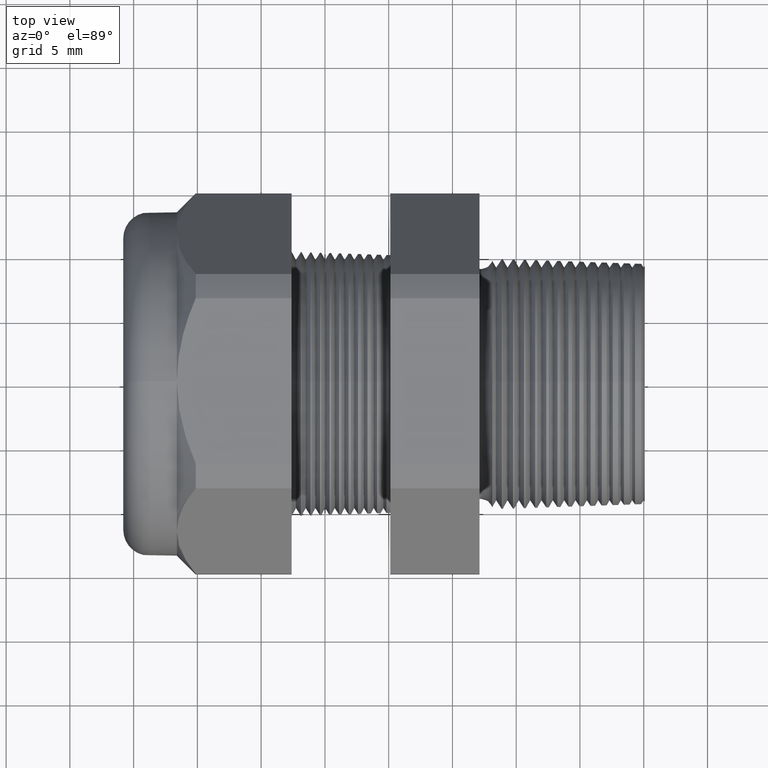
[diagram: clean part render]
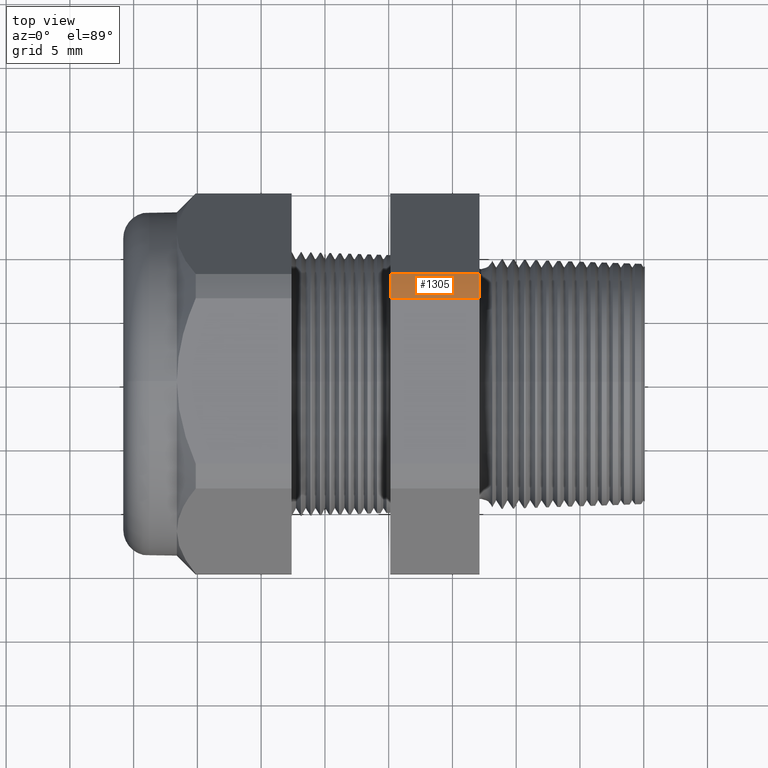
[diagram: same view with one face highlighted and labeled with its STEP entity id]
A machine part, top view. The second image highlights one B-rep face of the part: STEP entity #1305.
In plain terms, the highlighted cylindrical surface (partial cylindrical patch) has radius 14.9428 mm, axis along (-1, 0, 0).
Its self-contained STEP definition (entity closure, byte-faithful):
#1132 = VERTEX_POINT ( 'NONE', #4170 ) ;
#1134 = EDGE_CURVE ( 'NONE', #1132, #1135, #3681, .T. ) ;
#1135 = VERTEX_POINT ( 'NONE', #4230 ) ;
#1221 = VERTEX_POINT ( 'NONE', #4367 ) ;
#1274 = VERTEX_POINT ( 'NONE', #4475 ) ;
#1276 = EDGE_CURVE ( 'NONE', #1274, #1221, #4474, .T. ) ;
#1303 = EDGE_CURVE ( 'NONE', #1132, #1221, #4488, .T. ) ;
#1305 = ADVANCED_FACE ( 'NONE', ( #4484 ), #4483, .T. ) ;
#1306 = EDGE_LOOP ( 'NONE', ( #1307, #1308, #1309, #1311 ) ) ;
#1307 = ORIENTED_EDGE ( 'NONE', *, *, #1303, .T. ) ;
#1308 = ORIENTED_EDGE ( 'NONE', *, *, #1276, .F. ) ;
#1309 = ORIENTED_EDGE ( 'NONE', *, *, #1310, .F. ) ;
#1310 = EDGE_CURVE ( 'NONE', #1135, #1274, #4548, .T. ) ;
#1311 = ORIENTED_EDGE ( 'NONE', *, *, #1134, .F. ) ;
#3681 = CIRCLE ( 'NONE', #3930, 0.5882999999999999300 ) ;
#3930 = AXIS2_PLACEMENT_3D ( 'NONE', #4169, #4232, #4231 ) ;
#4169 = CARTESIAN_POINT ( 'NONE',  ( -0.3100000000000000000, 0.0000000000000000000, 0.0000000000000000000 ) ) ;
#4170 = CARTESIAN_POINT ( 'NONE',  ( -0.3099999999999998300, 0.3313250556190263700, 0.4861281698472626500 ) ) ;
#4230 = CARTESIAN_POINT ( 'NONE',  ( -0.3099999999999998300, 0.2553368167734530500, 0.5300000000000001400 ) ) ;
#4231 = DIRECTION ( 'NONE',  ( 0.0000000000000000000, 0.0000000000000000000, -1.000000000000000000 ) ) ;
#4232 = DIRECTION ( 'NONE',  ( 1.000000000000000000, 0.0000000000000000000, 0.0000000000000000000 ) ) ;
#4367 = CARTESIAN_POINT ( 'NONE',  ( -0.5855905511811020400, 0.3313250556190263700, 0.4861281698472626500 ) ) ;
#4470 = DIRECTION ( 'NONE',  ( 0.0000000000000000000, 0.0000000000000000000, 1.000000000000000000 ) ) ;
#4471 = DIRECTION ( 'NONE',  ( -1.000000000000000000, 0.0000000000000000000, 0.0000000000000000000 ) ) ;
#4472 = CARTESIAN_POINT ( 'NONE',  ( -0.5855905511811022600, 0.0000000000000000000, 0.0000000000000000000 ) ) ;
#4473 = AXIS2_PLACEMENT_3D ( 'NONE', #4472, #4471, #4470 ) ;
#4474 = CIRCLE ( 'NONE', #4473, 0.5882999999999999300 ) ;
#4475 = CARTESIAN_POINT ( 'NONE',  ( -0.5855905511811020400, 0.2553368167734530500, 0.5300000000000001400 ) ) ;
#4483 = CYLINDRICAL_SURFACE ( 'NONE', #4547, 0.5882999999999999300 ) ;
#4484 = FACE_OUTER_BOUND ( 'NONE', #1306, .T. ) ;
#4485 = DIRECTION ( 'NONE',  ( -1.000000000000000000, 0.0000000000000000000, 0.0000000000000000000 ) ) ;
#4486 = VECTOR ( 'NONE', #4485, 39.37007874015748100 ) ;
#4487 = CARTESIAN_POINT ( 'NONE',  ( 0.2000000000000000400, 0.3313250556190263700, 0.4861281698472626500 ) ) ;
#4488 = LINE ( 'NONE', #4487, #4486 ) ;
#4489 = CARTESIAN_POINT ( 'NONE',  ( 0.2000000000000000400, 0.0000000000000000000, 0.0000000000000000000 ) ) ;
#4542 = DIRECTION ( 'NONE',  ( -1.000000000000000000, 0.0000000000000000000, 0.0000000000000000000 ) ) ;
#4543 = VECTOR ( 'NONE', #4542, 39.37007874015748100 ) ;
#4544 = CARTESIAN_POINT ( 'NONE',  ( 0.2000000000000000400, 0.2553368167734530500, 0.5300000000000001400 ) ) ;
#4545 = DIRECTION ( 'NONE',  ( 0.0000000000000000000, 0.0000000000000000000, 1.000000000000000000 ) ) ;
#4546 = DIRECTION ( 'NONE',  ( -1.000000000000000000, 0.0000000000000000000, 0.0000000000000000000 ) ) ;
#4547 = AXIS2_PLACEMENT_3D ( 'NONE', #4489, #4546, #4545 ) ;
#4548 = LINE ( 'NONE', #4544, #4543 ) ;